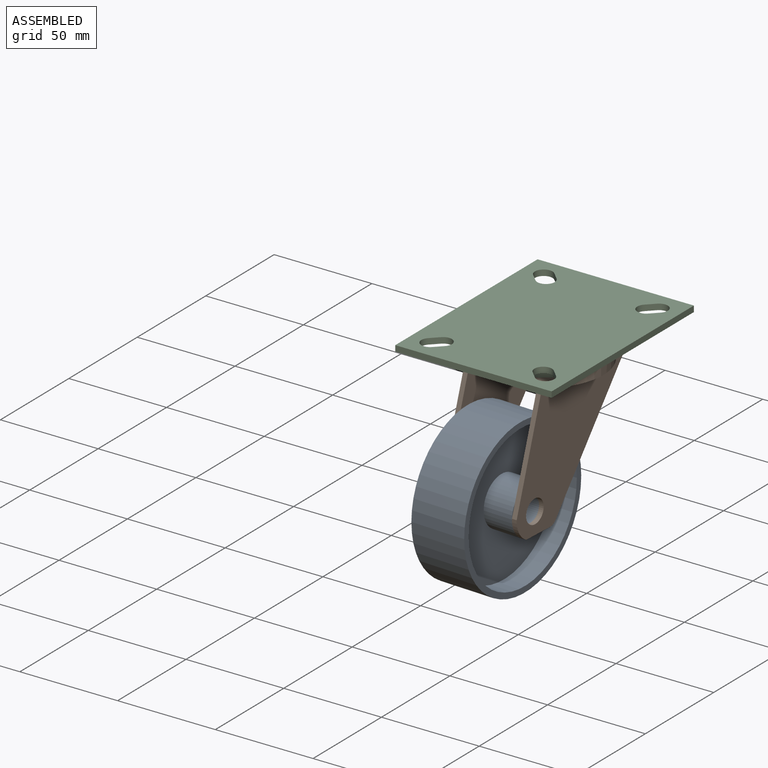
[diagram: assembled view]
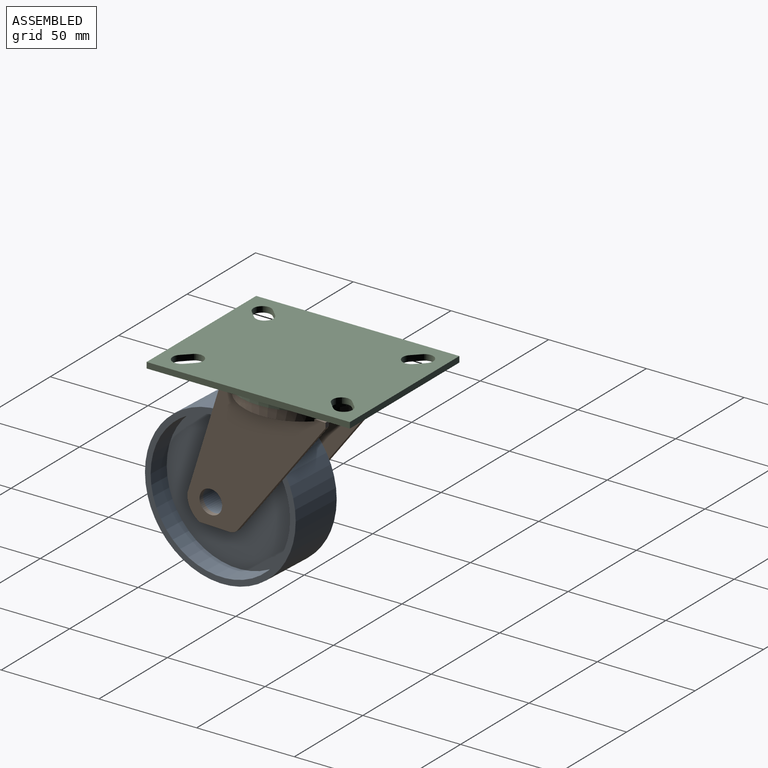
[diagram: assembled view, second angle]
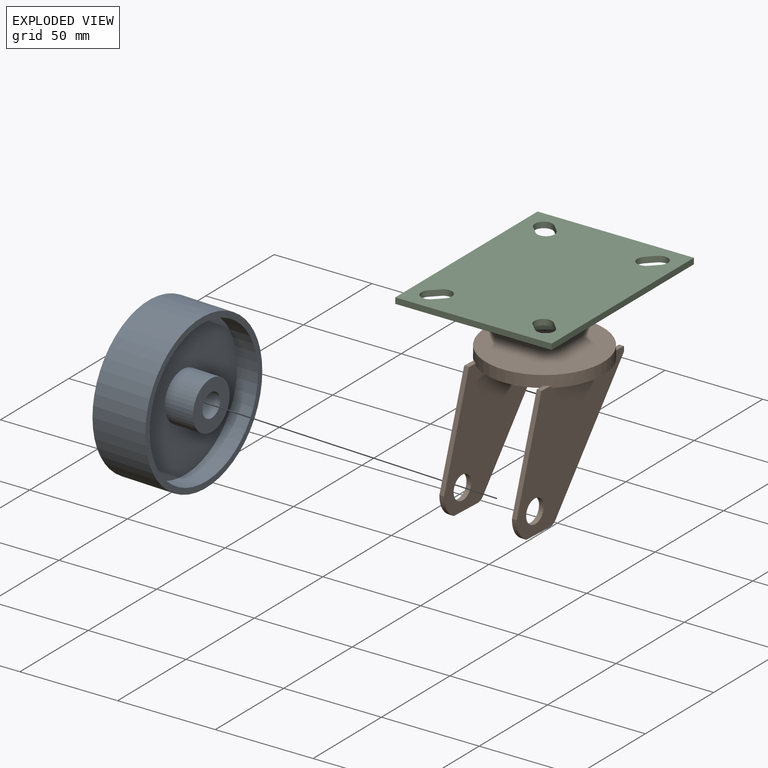
[diagram: exploded view]
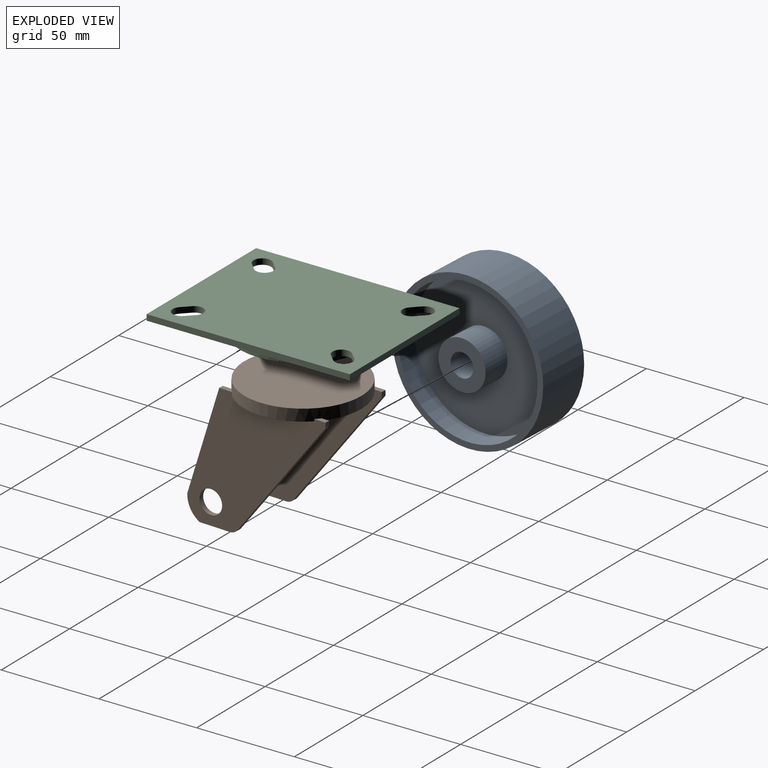
[diagram: exploded view, second angle]
ASSEMBLY  parts=3 mates=2
PART A: 12 faces, bbox 36x80x80 mm
  f0: cylinder r=40mm len=80mm, axis (-1,0,0), area 7037.2mm2, adj f1,f7
  f1: plane 80x80mm, normal (1,0,0), area 725.7mm2, adj f0,f2
  f2: cylinder r=37mm len=74mm, axis (1,0,0), area 2557.3mm2, adj f1,f3
  f3: plane 74x74mm, normal (1,0,0), area 3810mm2, adj f2,f4
  f4: cylinder r=12.5mm len=25mm, axis (-1,0,0), area 1178.1mm2, adj f3,f6
  f5: cylinder r=6mm len=36mm, axis (-1,0,0), area 1357.2mm2, adj f6,f11
  f6: plane 25x25mm, normal (1,0,0), area 377.8mm2, adj f4,f5
  f7: plane 80x80mm, normal (-1,0,0), area 725.7mm2, adj f0,f8
  f8: cylinder r=37mm len=74mm, axis (-1,0,0), area 2557.3mm2, adj f7,f9
  f9: plane 74x74mm, normal (-1,0,0), area 3810mm2, adj f8,f10
  f10: cylinder r=12.5mm len=25mm, axis (1,0,0), area 1178.1mm2, adj f9,f11
  f11: plane 25x25mm, normal (-1,0,0), area 377.8mm2, adj f5,f10
PART B: 27 faces, bbox 60x75.5x70 mm
  f0: plane 6.65x2.5mm, normal (0,0,1), area 13.9mm2, adj f1,f2,f4,f13
  f1: plane 73.33x65.06mm, normal (1,0,0), area 2629.2mm2, adj f0,f3,f4,f5,f6,f7,f8,f9
  f2: plane 73.33x65.06mm, normal (-1,0,0), area 2624.8mm2, adj f0,f3,f4,f5,f6,f7,f8,f9
  f3: plane 5.93x2.5mm, normal (0,0,1), area 12.1mm2, adj f1,f2,f9,f13
  f4: plane 53.59x16.94mm, normal (0,-0.95,0.3), area 140.5mm2, adj f0,f1,f2,f5
  f5: cylinder r=12.5mm len=11.47mm, axis (-1,0,0), area 34.8mm2, adj f1,f2,f4,f6
  f6: plane 16.08x2.5mm, normal (0,0,-1), area 40.2mm2, adj f1,f2,f5,f7
  f7: cylinder r=5mm len=3.96mm, axis (-1,0,0), area 11.4mm2, adj f1,f2,f6,f8
  f8: plane 60.51x46.73mm, normal (0,0.79,-0.61), area 191.1mm2, adj f1,f2,f7,f9
  f9: plane 2.6x2.5mm, normal (0,1,0), area 6.5mm2, adj f1,f2,f3,f8
  f10: cylinder r=6mm len=12mm, axis (-1,0,0), area 94.2mm2, adj f1,f2
  f11: plane 60x36mm, normal (0,0,-1), area 2022.3mm2, adj f2,f13,f18
  f12: plane 43.81x9.5mm, normal (0,0,-1), area 287.6mm2, adj f1,f13
  f13: cylinder r=30mm len=60mm, axis (0,0,1), area 1117.2mm2, adj f0,f1,f2,f3,f11,f12,f14,f15
  f14: plane 43.81x9.5mm, normal (0,0,-1), area 287.6mm2, adj f13,f17
  f15: plane 60x60mm, normal (0,0,1), area 2827.4mm2, adj f13
  f16: plane 6.65x2.5mm, normal (0,0,1), area 13.9mm2, adj f13,f17,f18,f20
  f17: plane 73.33x65.06mm, normal (-1,0,0), area 2629.2mm2, adj f13,f14,f16,f19,f20,f21,f22,f23
  f18: plane 73.33x65.06mm, normal (1,0,0), area 2624.8mm2, adj f11,f13,f16,f19,f20,f21,f22,f23
  f19: plane 5.93x2.5mm, normal (0,0,1), area 12.1mm2, adj f13,f17,f18,f25
  f20: plane 53.59x16.94mm, normal (0,-0.95,0.3), area 140.5mm2, adj f16,f17,f18,f21
  f21: cylinder r=12.5mm len=11.47mm, axis (1,0,0), area 34.8mm2, adj f17,f18,f20,f22
  f22: plane 16.08x2.5mm, normal (0,0,-1), area 40.2mm2, adj f17,f18,f21,f23
  f23: cylinder r=5mm len=3.96mm, axis (1,0,0), area 11.4mm2, adj f17,f18,f22,f24
  f24: plane 60.51x46.73mm, normal (0,0.79,-0.61), area 191.1mm2, adj f17,f18,f23,f25
  f25: plane 2.6x2.5mm, normal (0,1,0), area 6.5mm2, adj f17,f18,f19,f24
  f26: cylinder r=6mm len=12mm, axis (1,0,0), area 94.2mm2, adj f17,f18
PART C: 24 faces, bbox 80x104x9 mm
  f0: plane 3.89x3.89mm, normal (-0.71,0.71,0), area 16.5mm2, adj f1,f19,f20,f21
  f1: cylinder r=4.5mm len=7.68mm, axis (0,0,1), area 42.4mm2, adj f0,f2,f20,f21
  f2: plane 3.89x3.89mm, normal (0.71,-0.71,0), area 16.5mm2, adj f1,f19,f20,f21
  f3: plane 3.89x3.89mm, normal (-0.71,0.71,0), area 16.5mm2, adj f4,f15,f20,f21
  f4: cylinder r=4.5mm len=7.68mm, axis (0,0,1), area 42.4mm2, adj f3,f5,f20,f21
  f5: plane 3.89x3.89mm, normal (0.71,-0.71,0), area 16.5mm2, adj f4,f15,f20,f21
  f6: plane 104x3mm, normal (-1,0,0), area 312mm2, adj f7,f16,f20,f21
  f7: plane 80x3mm, normal (0,-1,0), area 240mm2, adj f6,f8,f20,f21
  f8: plane 104x3mm, normal (1,0,0), area 312mm2, adj f7,f16,f20,f21
  f9: cylinder r=4.5mm len=7.68mm, axis (0,0,1), area 42.4mm2, adj f10,f17,f20,f21
  f10: plane 3.89x3.89mm, normal (0.71,0.71,0), area 16.5mm2, adj f9,f11,f20,f21
  f11: cylinder r=4.5mm len=7.68mm, axis (0,0,1), area 42.4mm2, adj f10,f17,f20,f21
  f12: cylinder r=4.5mm len=7.68mm, axis (0,0,1), area 42.4mm2, adj f13,f18,f20,f21
  f13: plane 3.89x3.89mm, normal (-0.71,-0.71,0), area 16.5mm2, adj f12,f14,f20,f21
  f14: cylinder r=4.5mm len=7.68mm, axis (0,0,1), area 42.4mm2, adj f13,f18,f20,f21
  f15: cylinder r=4.5mm len=7.68mm, axis (0,0,1), area 42.4mm2, adj f3,f5,f20,f21
  f16: plane 80x3mm, normal (0,1,0), area 240mm2, adj f6,f8,f20,f21
  f17: plane 3.89x3.89mm, normal (-0.71,-0.71,0), area 16.5mm2, adj f9,f11,f20,f21
  f18: plane 3.89x3.89mm, normal (0.71,0.71,0), area 16.5mm2, adj f12,f14,f20,f21
  f19: cylinder r=4.5mm len=7.68mm, axis (0,0,1), area 42.4mm2, adj f0,f2,f20,f21
  f20: plane 104x80mm, normal (0,0,-1), area 4549.2mm2, adj f0,f1,f2,f3,f4,f5,f6,f7
  f21: plane 104x80mm, normal (0,0,1), area 7867.5mm2, adj f0,f1,f2,f3,f4,f5,f6,f7
  f22: cylinder r=32.5mm len=65mm, axis (0,0,1), area 1225.2mm2, adj f20,f23
  f23: plane 65x65mm, normal (0,0,-1), area 3318.3mm2, adj f22
PLACE A rot(axis=(0,0,-1),2.8deg) t=(-30.62,12.97,0)mm
PLACE B rot(axis=(0,0,-1),2.8deg) t=(-30.62,12.97,0)mm
PLACE C t=(-30.62,12.97,0)mm fixed
MATE revolute C.f22 <-> B.f13  axis (0,0,-1) through (-30.62,12.97,-9)mm
MATE fastened A.f0 <-> B.f5  axis (-1,0.05,0) through (-50.23,-19.1,-68)mm
